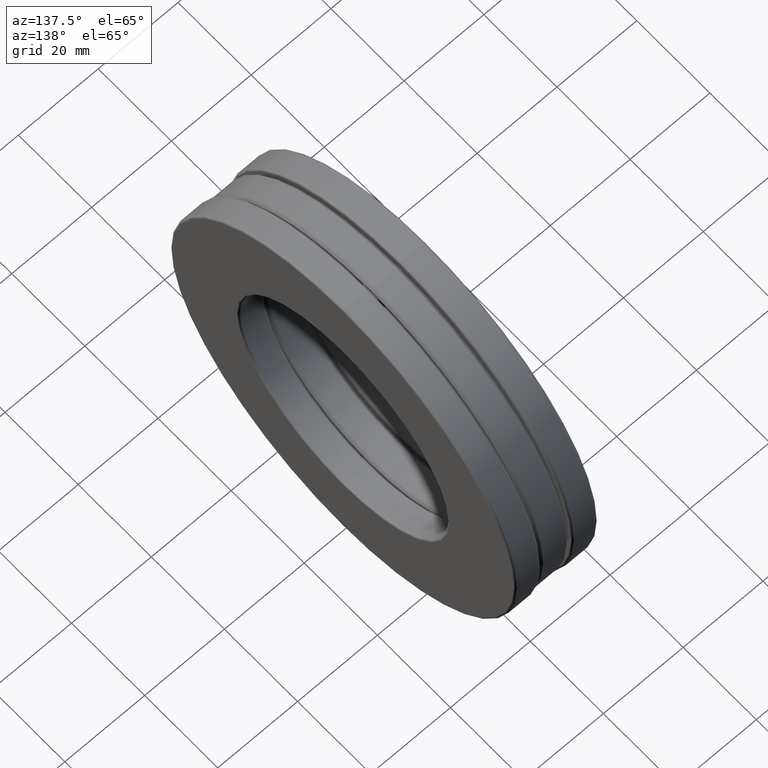
[diagram: clean part render]
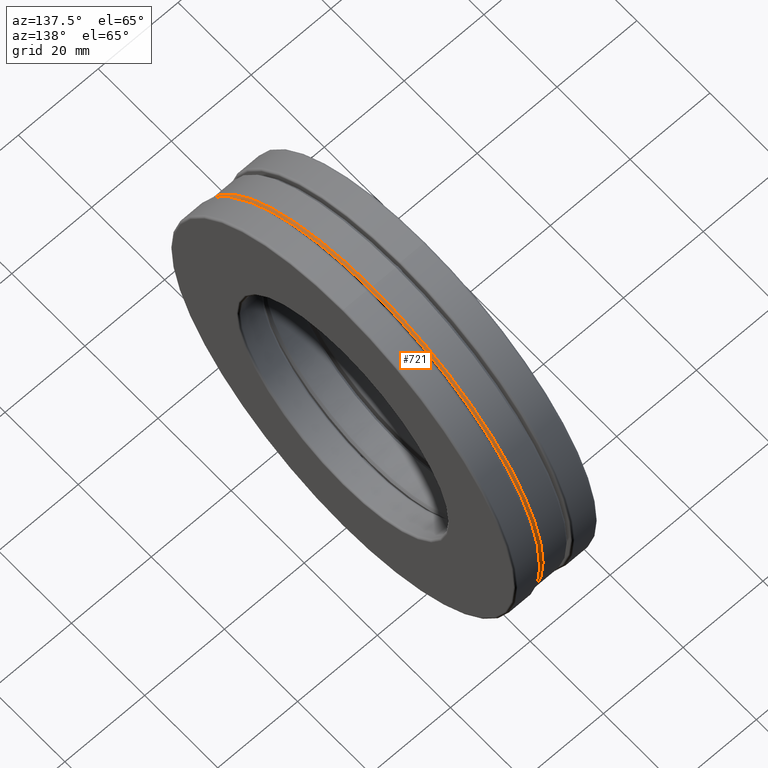
[diagram: same view with one face highlighted and labeled with its STEP entity id]
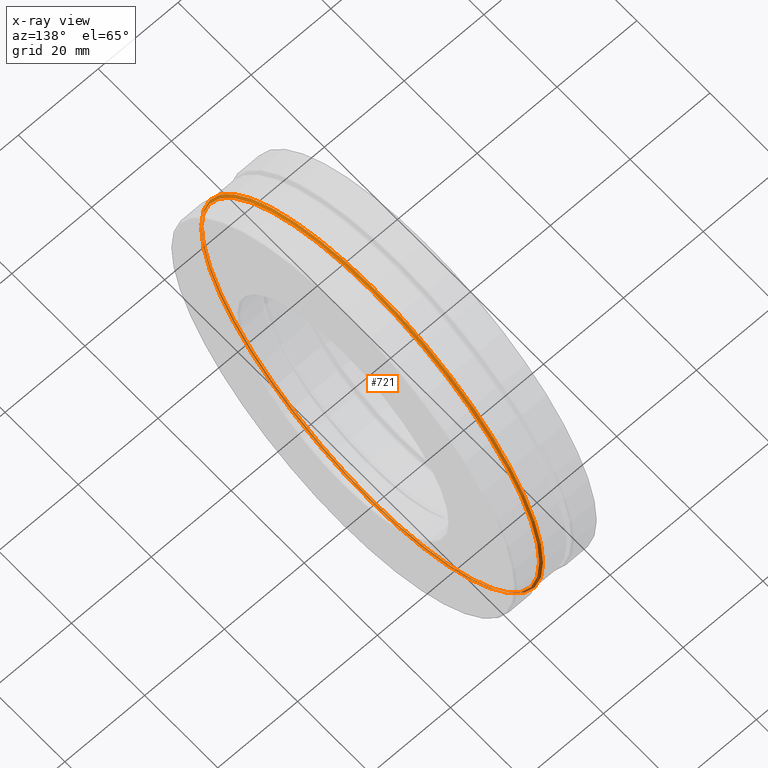
[diagram: x-ray of the same camera — body ghosted, the highlighted face saturated]
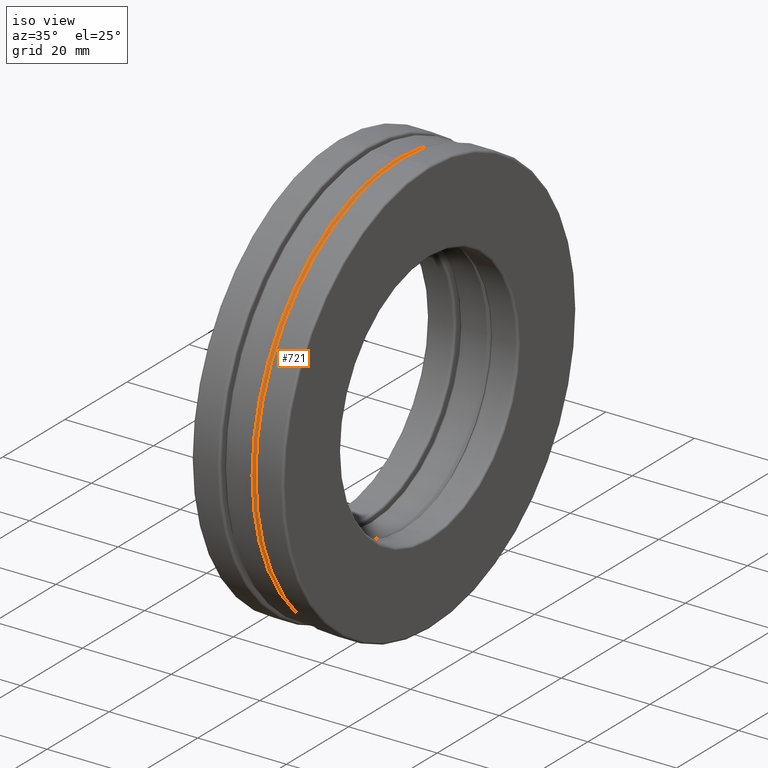
[diagram: same view with one face highlighted and labeled with its STEP entity id]
A machine part, auxiliary view. The second image highlights one B-rep face of the part: STEP entity #721.
The next image is the same camera in x-ray: the body ghosted, the highlighted face saturated — about 29% of this face is hidden behind the body in this view.
A second angle (iso view) of the same face is appended — the face is thin or edge-on in the first view.
In plain terms, the highlighted conical surface has half-angle 45 deg.
Its self-contained STEP definition (entity closure, byte-faithful):
#24 = DIRECTION ( 'NONE',  ( -1.000000000000000000, -0.0000000000000000000, -0.0000000000000000000 ) ) ;
#123 = CARTESIAN_POINT ( 'NONE',  ( 0.1160000000000000100, 0.0000000000000000000, 1.839375000000000200 ) ) ;
#152 = FACE_BOUND ( 'NONE', #392, .T. ) ;
#169 = DIRECTION ( 'NONE',  ( 0.0000000000000000000, 0.0000000000000000000, 1.000000000000000000 ) ) ;
#227 = EDGE_CURVE ( 'NONE', #1267, #1267, #1069, .T. ) ;
#277 = ORIENTED_EDGE ( 'NONE', *, *, #227, .T. ) ;
#392 = EDGE_LOOP ( 'NONE', ( #277 ) ) ;
#416 = CARTESIAN_POINT ( 'NONE',  ( 0.1160000000000000100, 0.0000000000000000000, 0.0000000000000000000 ) ) ;
#431 = EDGE_LOOP ( 'NONE', ( #1003 ) ) ;
#468 = CARTESIAN_POINT ( 'NONE',  ( 0.1360000000000000100, 0.0000000000000000000, 0.0000000000000000000 ) ) ;
#591 = EDGE_CURVE ( 'NONE', #1237, #1237, #623, .T. ) ;
#623 = CIRCLE ( 'NONE', #1207, 1.839375000000000200 ) ;
#673 = CARTESIAN_POINT ( 'NONE',  ( 0.1160000000000000100, 0.0000000000000000000, 0.0000000000000000000 ) ) ;
#721 = ADVANCED_FACE ( 'NONE', ( #152, #1138 ), #1406, .T. ) ;
#754 = DIRECTION ( 'NONE',  ( -1.000000000000000000, -0.0000000000000000000, -0.0000000000000000000 ) ) ;
#768 = DIRECTION ( 'NONE',  ( 0.0000000000000000000, 0.0000000000000000000, 1.000000000000000000 ) ) ;
#772 = AXIS2_PLACEMENT_3D ( 'NONE', #673, #1098, #768 ) ;
#910 = CARTESIAN_POINT ( 'NONE',  ( 0.1360000000000000100, 0.0000000000000000000, 1.819375000000000000 ) ) ;
#1003 = ORIENTED_EDGE ( 'NONE', *, *, #591, .F. ) ;
#1069 = CIRCLE ( 'NONE', #1119, 1.819375000000000000 ) ;
#1098 = DIRECTION ( 'NONE',  ( -1.000000000000000000, -0.0000000000000000000, -0.0000000000000000000 ) ) ;
#1119 = AXIS2_PLACEMENT_3D ( 'NONE', #468, #24, #1366 ) ;
#1138 = FACE_OUTER_BOUND ( 'NONE', #431, .T. ) ;
#1207 = AXIS2_PLACEMENT_3D ( 'NONE', #416, #754, #169 ) ;
#1237 = VERTEX_POINT ( 'NONE', #123 ) ;
#1267 = VERTEX_POINT ( 'NONE', #910 ) ;
#1366 = DIRECTION ( 'NONE',  ( 0.0000000000000000000, 0.0000000000000000000, 1.000000000000000000 ) ) ;
#1406 = CONICAL_SURFACE ( 'NONE', #772, 1.839375000000000200, 0.7853981633974500600 ) ;